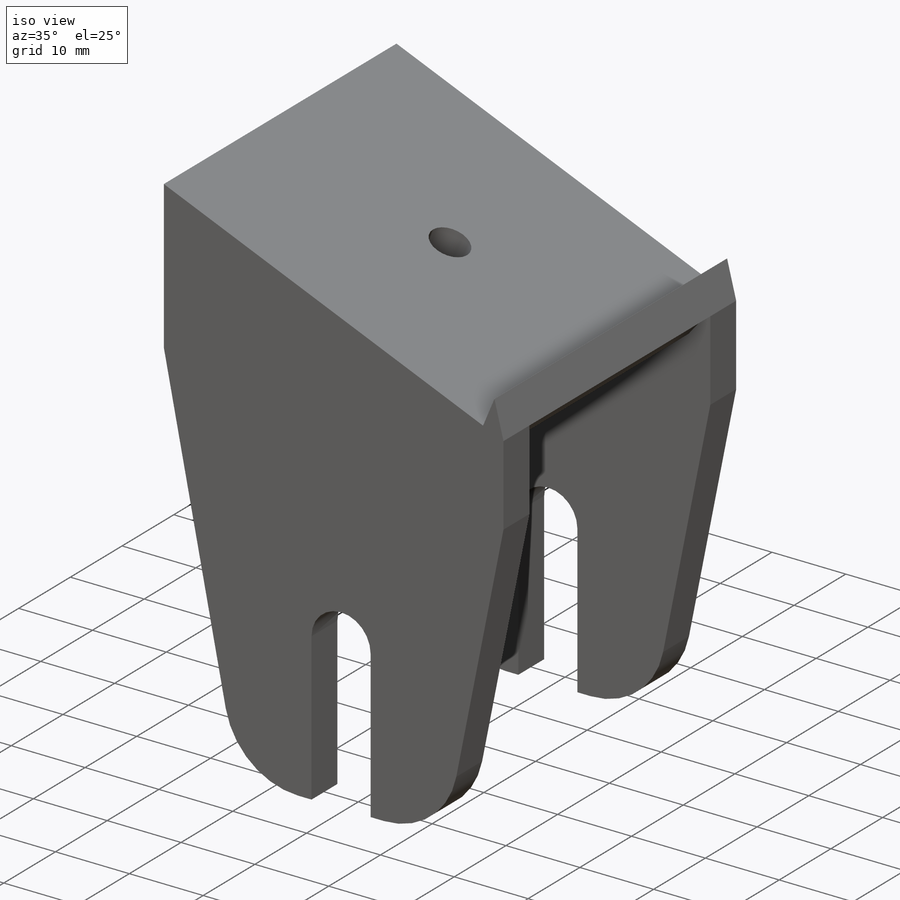
[diagram: iso view]
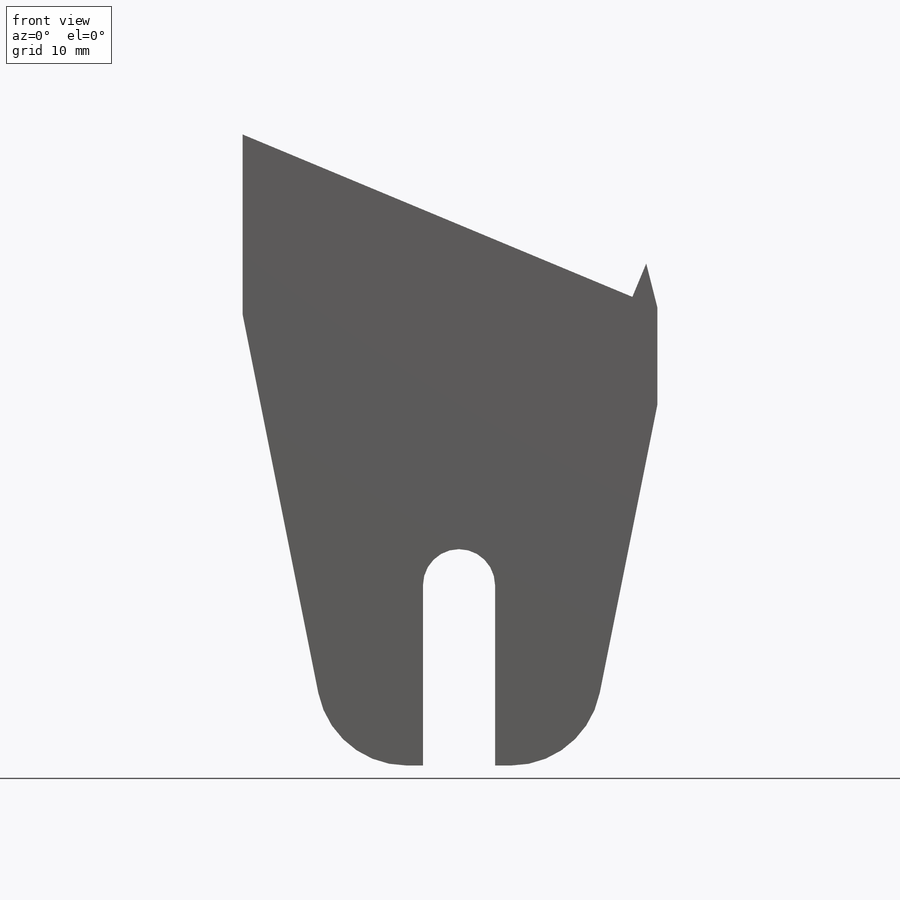
[diagram: front view]
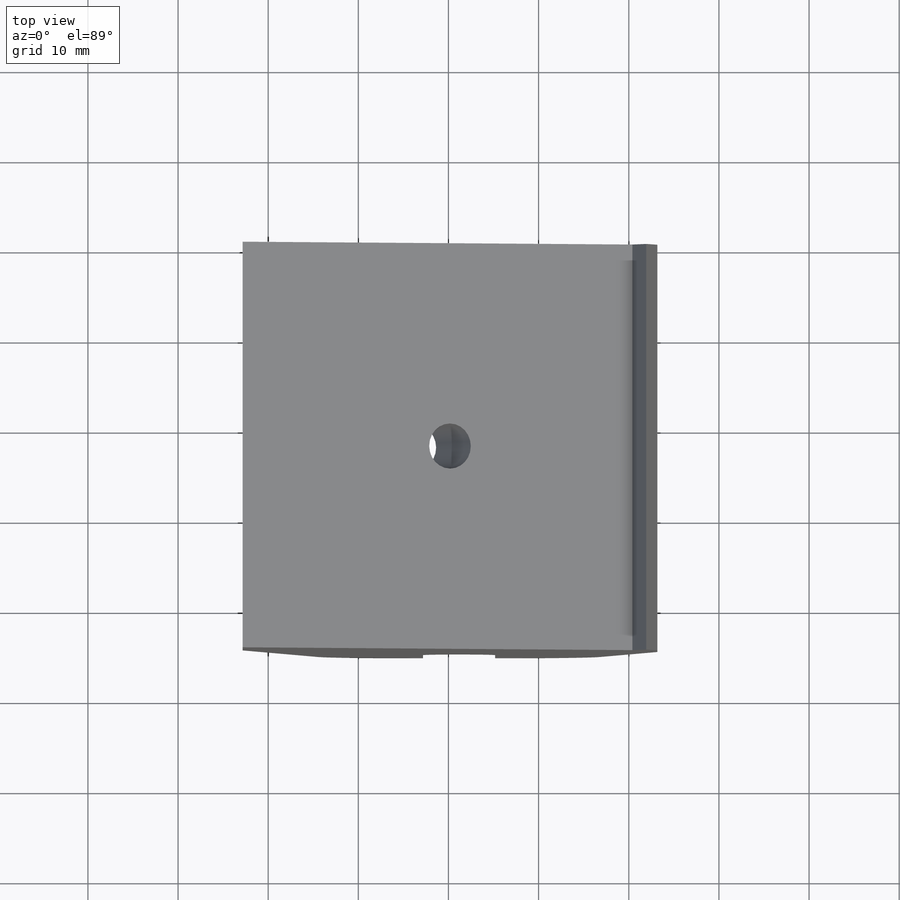
[diagram: top view]
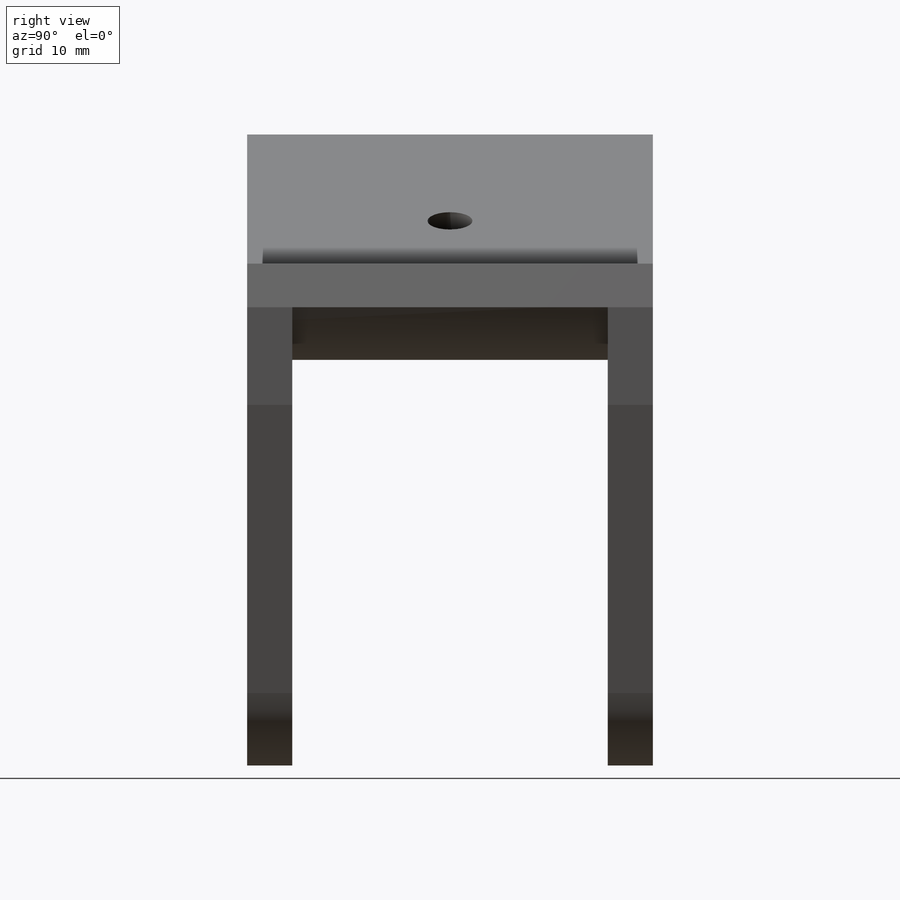
[diagram: right view]
SOLIDWORKS PART (.sldprt)
format: sldprt  version: not decoded by parser v0  size: 455,168 bytes
history: native  units: mm
features: sketch x7, cut_extrude x4, plane x3, extrude x3, material x1, fillet x1 (+9 scaffold rows collapsed)
feature tree (28):
  scaffold x9  (default folders/planes/origin — collapsed)
  material  "Material <sin especificar>"
  plane  "Alzado"
  plane  "Planta"
  plane  "Vista lateral"
  sketch  "Croquis1"  dims[D1=10.0mm D2=20.0mm]
  extrude  "Saliente-Extruir1"  Depth=45mm
  sketch  "Croquis2"  dims[D1=10.0mm]
  cut_extrude  "Cortar-Extruir1"  Depth=25mm
  sketch  "Croquis3"
  extrude  "Saliente-Extruir2"  Depth=0.0001mm
  sketch  "Croquis4"
  cut_extrude  "Cortar-Extruir2"  Depth=50.0001mm
  sketch  "Croquis5"  dims[D1=4.0mm]
  cut_extrude  "Cortar-Extruir3"  Depth=20mm
  sketch  "Croquis6"  dims[D1=5.0mm]
  cut_extrude  "Cortar-Extruir4"  Depth=50mm
  fillet  "Redondeo7"  Radius=10mm
  sketch  "Croquis7"  dims[D1=4.0mm]
  extrude  "Saliente-Extruir3"  [1 undecoded]
decode coverage: 12 of 15 modeling features carry decoded parameters
note: 1 parameter value undecoded
note: suppression state not decoded; provenance and decode notes live in map.json
